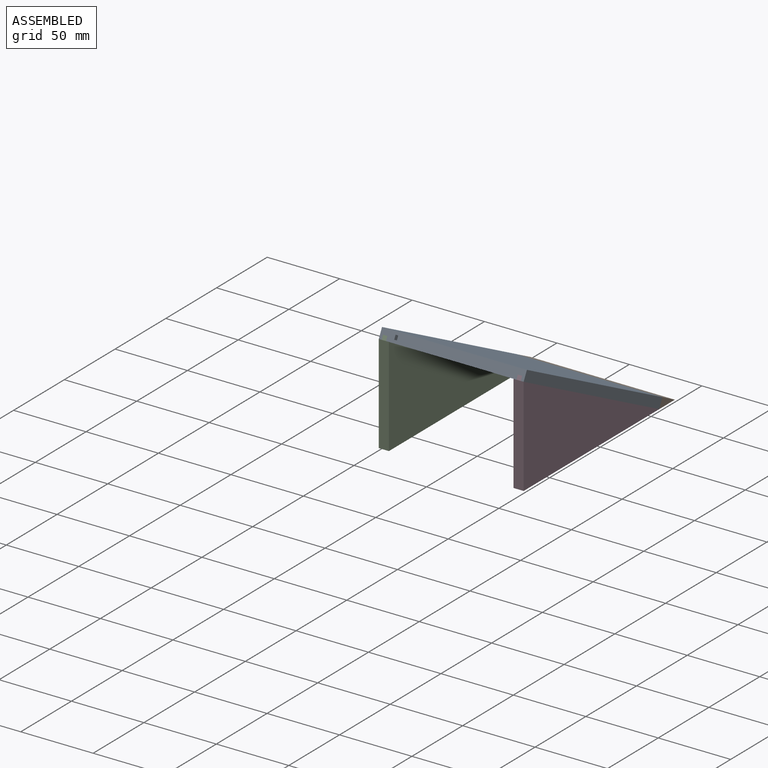
[diagram: assembled view]
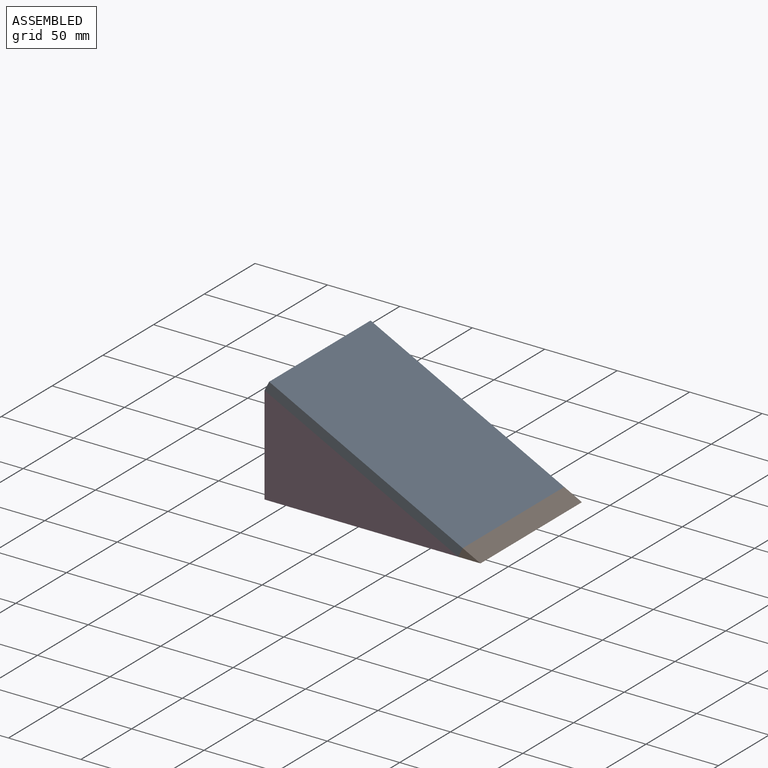
[diagram: assembled view, second angle]
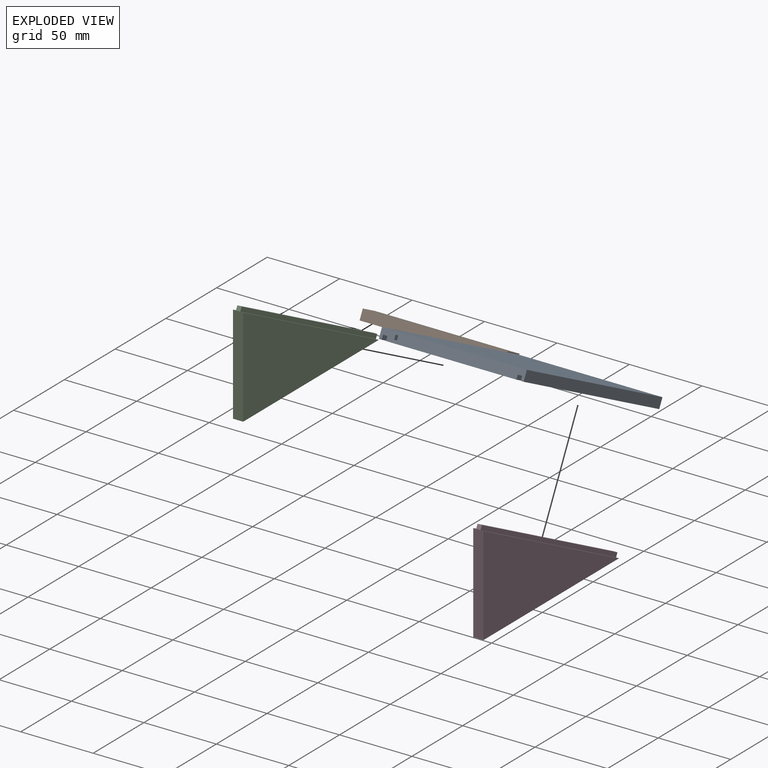
[diagram: exploded view]
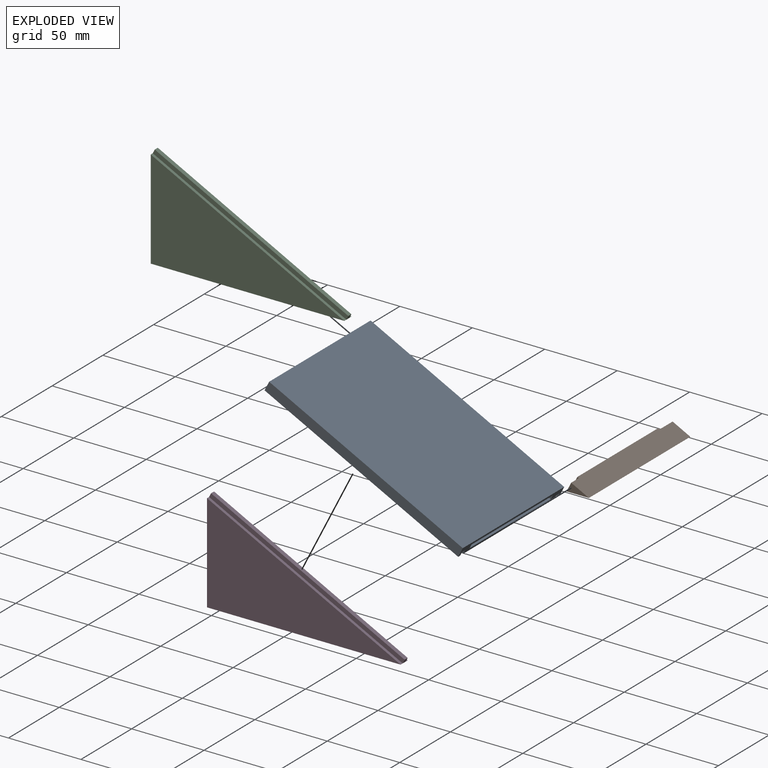
[diagram: exploded view, second angle]
ASSEMBLY  parts=4 mates=9
PART A: 24 faces, bbox 100x150x7 mm
  f0: plane 100x7mm, normal (0,-1,0), area 442mm2, adj f1,f2,f4,f5,f6,f7,f8,f9
  f1: plane 150x2mm, normal (0,0,-1), area 300mm2, adj f0,f3,f4,f11
  f2: plane 150x90mm, normal (0,0,-1), area 13500mm2, adj f0,f3,f9,f12
  f3: plane 100x7mm, normal (0,1,0), area 442mm2, adj f1,f2,f4,f5,f6,f7,f8,f9
  f4: plane 150x7mm, normal (-1,0,0), area 1050mm2, adj f0,f1,f3,f6
  f5: plane 150x7mm, normal (1,0,0), area 1050mm2, adj f0,f3,f6,f7
  f6: plane 150x100mm, normal (0,0,1), area 15000mm2, adj f0,f3,f4,f5
  f7: plane 150x2mm, normal (0,0,-1), area 300mm2, adj f0,f3,f5,f8
  f8: plane 150x3mm, normal (-1,0,0), area 450mm2, adj f0,f3,f7,f10
  f9: plane 150x3mm, normal (1,0,0), area 450mm2, adj f0,f2,f3,f10
  f10: plane 150x3mm, normal (0,0,-1), area 450mm2, adj f0,f3,f8,f9
  f11: plane 150x3mm, normal (1,0,0), area 450mm2, adj f0,f1,f3,f13
  f12: plane 150x3mm, normal (-1,0,0), area 450mm2, adj f0,f2,f3,f13
  f13: plane 150x3mm, normal (0,0,-1), area 450mm2, adj f0,f3,f11,f12
  f14: plane 80x3mm, normal (0,0,-1), area 240mm2, adj f0,f15,f17,f18
  f15: plane 3x3mm, normal (1,0,0), area 9mm2, adj f0,f14,f16,f18
  f16: plane 80x3mm, normal (0,0,1), area 240mm2, adj f0,f15,f17,f18
  f17: plane 3x3mm, normal (-1,0,0), area 9mm2, adj f0,f14,f16,f18
  f18: plane 80x3mm, normal (0,-1,0), area 240mm2, adj f14,f15,f16,f17
  f19: plane 80x3mm, normal (0,0,-1), area 240mm2, adj f3,f20,f22,f23
  f20: plane 3x3mm, normal (-1,0,0), area 9mm2, adj f3,f19,f21,f23
  f21: plane 80x3mm, normal (0,0,1), area 240mm2, adj f3,f20,f22,f23
  f22: plane 3x3mm, normal (1,0,0), area 9mm2, adj f3,f19,f21,f23
  f23: plane 80x3mm, normal (0,1,0), area 240mm2, adj f19,f20,f21,f22
PART B: 10 faces, bbox 100x15.7x7 mm
  f0: plane 100x13.74mm, normal (0,0,-1), area 1373.8mm2, adj f1,f2,f3,f4
  f1: plane 100x13.74mm, normal (0,0.45,0.89), area 1541.9mm2, adj f0,f2,f3,f4
  f2: plane 100x7mm, normal (0,-1,0), area 460mm2, adj f0,f1,f3,f4,f5,f6,f7,f8
  f3: plane 13.74x7mm, normal (1,0,0), area 48.1mm2, adj f0,f1,f2
  f4: plane 13.74x7mm, normal (-1,0,0), area 48.1mm2, adj f0,f1,f2
  f5: plane 80x2mm, normal (0,0,1), area 160mm2, adj f2,f6,f8,f9
  f6: plane 3x2mm, normal (-1,0,0), area 6mm2, adj f2,f5,f7,f9
  f7: plane 80x2mm, normal (0,0,-1), area 160mm2, adj f2,f6,f8,f9
  f8: plane 3x2mm, normal (1,0,0), area 6mm2, adj f2,f5,f7,f9
  f9: plane 80x3mm, normal (0,-1,0), area 240mm2, adj f5,f6,f7,f8
PART C: 11 faces, bbox 7x135x70.8 mm
  f0: plane 133.65x68.1mm, normal (0,0.45,0.89), area 300mm2, adj f1,f3,f5,f9
  f1: plane 133.65x7mm, normal (0,0,-1), area 935.6mm2, adj f0,f2,f3,f4,f5,f8
  f2: plane 133.65x68.1mm, normal (0,0.45,0.89), area 300mm2, adj f1,f3,f4,f7
  f3: plane 68.1x7mm, normal (0,-1,0), area 476.7mm2, adj f0,f1,f2,f4,f5,f6
  f4: plane 133.65x68.1mm, normal (1,0,0), area 4550.7mm2, adj f1,f2,f3
  f5: plane 133.65x68.1mm, normal (-1,0,0), area 4550.7mm2, adj f0,f1,f3
  f6: plane 3x2.67mm, normal (0,-0.89,0.45), area 9mm2, adj f3,f7,f9,f10
  f7: plane 135.01x70.77mm, normal (1,0,0), area 450mm2, adj f2,f6,f8,f10
  f8: plane 3x2.67mm, normal (0,0.89,-0.45), area 9mm2, adj f1,f7,f9,f10
  f9: plane 135.01x70.77mm, normal (-1,0,0), area 450mm2, adj f0,f6,f8,f10
  f10: plane 133.65x68.1mm, normal (0,0.45,0.89), area 450mm2, adj f6,f7,f8,f9
PART D: same geometry as C
PLACE A rot(axis=(-1,0,0),27deg) t=(-52.41,-64.97,66.52)mm
PLACE B rot(axis=(0,-0.97,0.23),180deg) t=(47.59,84.1,-1.58)mm
PLACE C t=(-52.41,68.68,-1.58)mm fixed
PLACE D t=(40.59,68.68,-1.58)mm
MATE planar B.f4 <-> A.f5  axis (1,0,0) through (47.59,74.88,0.5)mm
MATE planar A.f10 <-> D.f10  axis (0,-0.45,-0.89) through (44.09,3.22,35.14)mm
MATE planar C.f8 <-> A.f3  axis (0,0.89,-0.45) through (-48.91,69.37,-0.24)mm
MATE planar A.f4 <-> C.f5  axis (-1,0,0) through (-52.41,3.45,35.59)mm
MATE planar D.f6 <-> A.f0  axis (0,-0.89,0.45) through (44.09,-64.29,67.86)mm
MATE planar C.f10 <-> A.f13  axis (0,0.45,0.89) through (-48.91,3.22,35.14)mm
MATE planar A.f3 <-> B.f2  axis (0,0.89,-0.45) through (-2.41,70.31,1.61)mm
MATE planar B.f7 <-> A.f19  axis (0,0.45,0.89) through (-2.41,70.06,3.33)mm
MATE planar D.f4 <-> A.f5  axis (1,0,0) through (47.59,-20.42,21.12)mm
